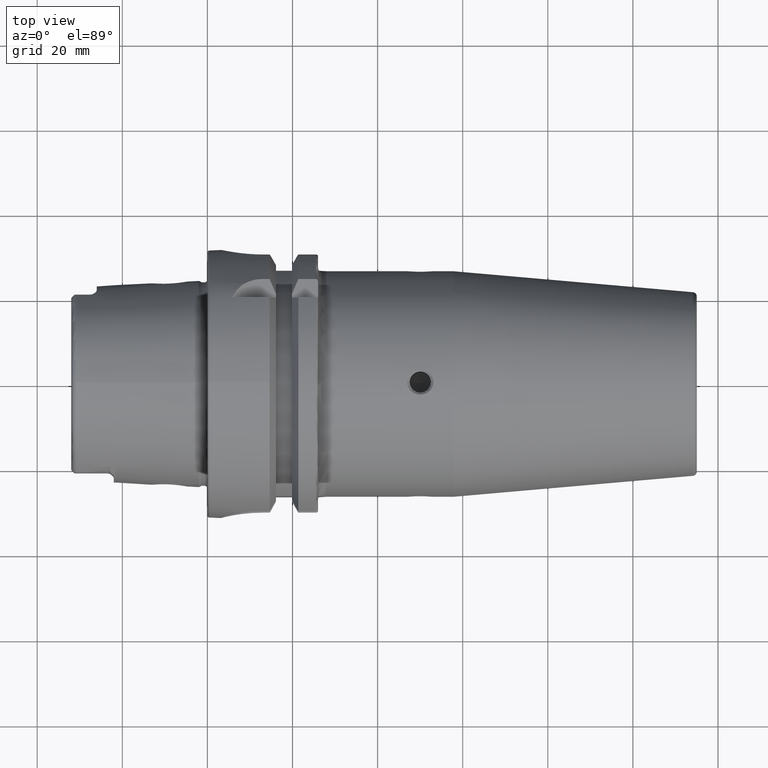
[diagram: clean part render]
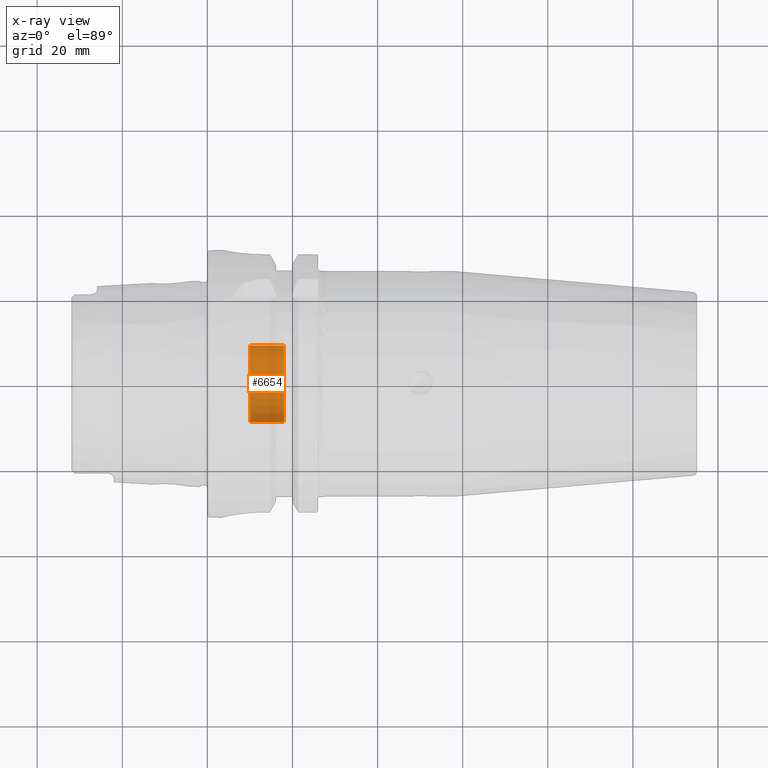
[diagram: x-ray — body ghosted, one internal face saturated and labeled with its STEP entity id]
A machine part, top view, then the same camera in x-ray: the body is ghosted and one INTERNAL B-rep face — a face not visible from any outside direction — is saturated and labeled: STEP entity #6654.
In plain terms, the highlighted cylindrical surface (partial cylindrical patch) has radius 9 mm, axis along (-1, 0, 0).
Its self-contained STEP definition (entity closure, byte-faithful):
#6589=CARTESIAN_POINT('',(3.937007874016E-1,0.E0,0.E0));
#6590=DIRECTION('',(1.E0,0.E0,0.E0));
#6591=DIRECTION('',(0.E0,-1.E0,0.E0));
#6592=AXIS2_PLACEMENT_3D('',#6589,#6590,#6591);
#6594=DIRECTION('',(1.E0,0.E0,0.E0));
#6595=VECTOR('',#6594,3.149606299213E-1);
#6596=CARTESIAN_POINT('',(3.937007874016E-1,3.543307086614E-1,0.E0));
#6597=LINE('',#6596,#6595);
#6603=DIRECTION('',(1.E0,0.E0,0.E0));
#6604=VECTOR('',#6603,3.149606299213E-1);
#6605=CARTESIAN_POINT('',(3.937007874016E-1,-3.543307086614E-1,0.E0));
#6606=LINE('',#6605,#6604);
#6612=CARTESIAN_POINT('',(7.086614173228E-1,0.E0,0.E0));
#6613=DIRECTION('',(-1.E0,0.E0,0.E0));
#6614=DIRECTION('',(0.E0,1.E0,0.E0));
#6615=AXIS2_PLACEMENT_3D('',#6612,#6613,#6614);
#6627=CARTESIAN_POINT('',(7.086614173228E-1,3.543307086614E-1,0.E0));
#6628=CARTESIAN_POINT('',(7.086614173228E-1,-3.543307086614E-1,0.E0));
#6629=VERTEX_POINT('',#6627);
#6630=VERTEX_POINT('',#6628);
#6631=CARTESIAN_POINT('',(3.937007874016E-1,3.543307086614E-1,0.E0));
#6632=VERTEX_POINT('',#6631);
#6633=CARTESIAN_POINT('',(3.937007874016E-1,-3.543307086614E-1,0.E0));
#6634=VERTEX_POINT('',#6633);
#6639=CARTESIAN_POINT('',(7.657480314961E-1,0.E0,0.E0));
#6640=DIRECTION('',(-1.E0,0.E0,0.E0));
#6641=DIRECTION('',(0.E0,1.E0,0.E0));
#6642=AXIS2_PLACEMENT_3D('',#6639,#6640,#6641);
#6643=CYLINDRICAL_SURFACE('',#6642,3.543307086614E-1);
#6645=ORIENTED_EDGE('',*,*,#6644,.T.);
#6647=ORIENTED_EDGE('',*,*,#6646,.T.);
#6649=ORIENTED_EDGE('',*,*,#6648,.F.);
#6651=ORIENTED_EDGE('',*,*,#6650,.T.);
#6652=EDGE_LOOP('',(#6645,#6647,#6649,#6651));
#6653=FACE_OUTER_BOUND('',#6652,.F.);
#6654=ADVANCED_FACE('',(#6653),#6643,.F.);
#6593=CIRCLE('',#6592,3.543307086614E-1);
#6616=CIRCLE('',#6615,3.543307086614E-1);
#6644=EDGE_CURVE('',#6632,#6629,#6597,.T.);
#6646=EDGE_CURVE('',#6629,#6630,#6616,.T.);
#6648=EDGE_CURVE('',#6634,#6630,#6606,.T.);
#6650=EDGE_CURVE('',#6634,#6632,#6593,.T.);